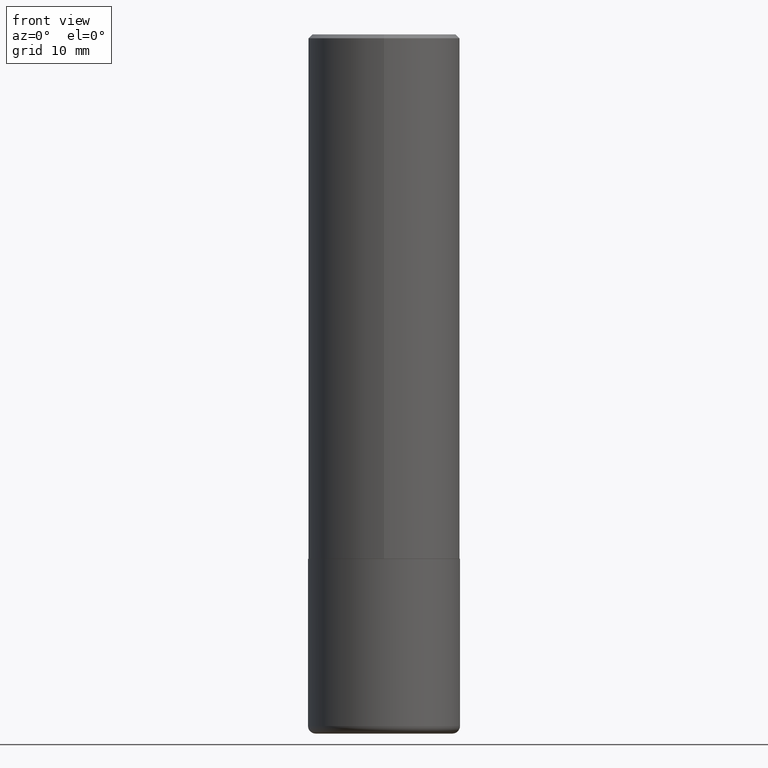
[diagram: clean part render]
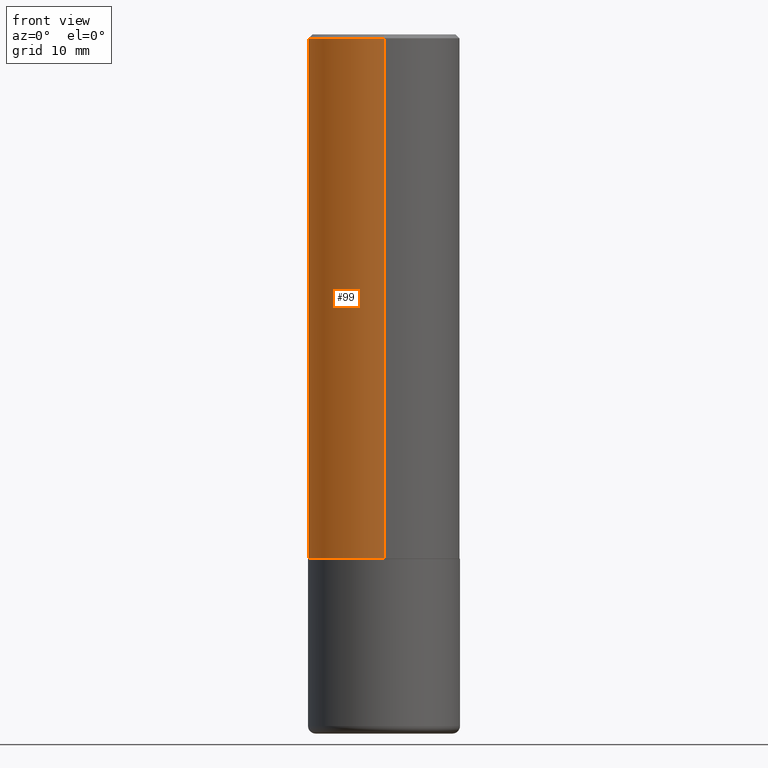
[diagram: same view with one face highlighted and labeled with its STEP entity id]
A machine part, front view. The second image highlights one B-rep face of the part: STEP entity #99.
In plain terms, the highlighted cylindrical surface (partial cylindrical patch) has radius 10 mm, axis along (-0, 0, 1).
Its self-contained STEP definition (entity closure, byte-faithful):
#7 = LINE ( 'NONE', #242, #141 ) ;
#21 = CIRCLE ( 'NONE', #382, 0.3937000000000003830 ) ;
#22 = DIRECTION ( 'NONE',  ( -2.445886766605957047E-29, 3.490882795731700761E-15, 1.000000000000000000 ) ) ;
#25 = CARTESIAN_POINT ( 'NONE',  ( 2.749192406205083217E-15, 0.3936999999999999389, -0.02000000000000146105 ) ) ;
#31 = VECTOR ( 'NONE', #59, 39.37007874015748143 ) ;
#39 = DIRECTION ( 'NONE',  ( -2.445886766605957047E-29, 3.490882795731700761E-15, 1.000000000000000000 ) ) ;
#55 = CYLINDRICAL_SURFACE ( 'NONE', #350, 0.3937000000000002164 ) ;
#57 = DIRECTION ( 'NONE',  ( -6.982962677686265922E-15, -1.000000000000000000, 3.490882795731701156E-15 ) ) ;
#59 = DIRECTION ( 'NONE',  ( -2.445886766605957047E-29, 3.490882795731700761E-15, 1.000000000000000000 ) ) ;
#99 = ADVANCED_FACE ( 'NONE', ( #205 ), #55, .T. ) ;
#100 = DIRECTION ( 'NONE',  ( -6.982962677686265133E-15, -1.000000000000000000, 4.163344669033670901E-15 ) ) ;
#101 = VERTEX_POINT ( 'NONE', #209 ) ;
#107 = ORIENTED_EDGE ( 'NONE', *, *, #179, .T. ) ;
#109 = CIRCLE ( 'NONE', #113, 0.3937000000000000499 ) ;
#113 = AXIS2_PLACEMENT_3D ( 'NONE', #193, #39, #286 ) ;
#140 = CARTESIAN_POINT ( 'NONE',  ( 2.797406750687549496E-15, 0.3936999999999908906, -2.715500000000001801 ) ) ;
#141 = VECTOR ( 'NONE', #22, 39.37007874015748143 ) ;
#155 = CARTESIAN_POINT ( 'NONE',  ( -2.749192406205018924E-15, -0.3937000000000098754, -2.715499999999998249 ) ) ;
#163 = ORIENTED_EDGE ( 'NONE', *, *, #311, .F. ) ;
#179 = EDGE_CURVE ( 'NONE', #317, #101, #214, .T. ) ;
#193 = CARTESIAN_POINT ( 'NONE',  ( 4.891773533211934694E-31, -6.981765591463430858E-17, -0.02000000000000008715 ) ) ;
#205 = FACE_OUTER_BOUND ( 'NONE', #225, .T. ) ;
#209 = CARTESIAN_POINT ( 'NONE',  ( -2.700978061722651252E-15, -0.3937000000000001054, -0.01999999999999870978 ) ) ;
#214 = LINE ( 'NONE', #344, #31 ) ;
#223 = ORIENTED_EDGE ( 'NONE', *, *, #384, .F. ) ;
#225 = EDGE_LOOP ( 'NONE', ( #223, #396, #107, #163 ) ) ;
#242 = CARTESIAN_POINT ( 'NONE',  ( 2.797406750687515575E-15, 0.3937000000000002164, -1.374360556679571455E-15 ) ) ;
#256 = DIRECTION ( 'NONE',  ( -2.445886766605957047E-29, 3.490882795731700761E-15, 1.000000000000000000 ) ) ;
#286 = DIRECTION ( 'NONE',  ( -6.982962677686265133E-15, -1.000000000000000000, 3.491137977679279424E-15 ) ) ;
#306 = EDGE_CURVE ( 'NONE', #397, #317, #21, .T. ) ;
#311 = EDGE_CURVE ( 'NONE', #395, #101, #109, .T. ) ;
#317 = VERTEX_POINT ( 'NONE', #155 ) ;
#344 = CARTESIAN_POINT ( 'NONE',  ( -2.749192406205084400E-15, -0.3937000000000002164, 1.374360556679571455E-15 ) ) ;
#350 = AXIS2_PLACEMENT_3D ( 'NONE', #391, #372, #57 ) ;
#355 = CARTESIAN_POINT ( 'NONE',  ( 6.641805514718476328E-29, -9.479492231809431685E-15, -2.715500000000000025 ) ) ;
#372 = DIRECTION ( 'NONE',  ( -2.445886766605957047E-29, 3.490882795731700761E-15, 1.000000000000000000 ) ) ;
#382 = AXIS2_PLACEMENT_3D ( 'NONE', #355, #256, #100 ) ;
#384 = EDGE_CURVE ( 'NONE', #397, #395, #7, .T. ) ;
#391 = CARTESIAN_POINT ( 'NONE',  ( 0.000000000000000000, 0.000000000000000000, 0.000000000000000000 ) ) ;
#395 = VERTEX_POINT ( 'NONE', #25 ) ;
#396 = ORIENTED_EDGE ( 'NONE', *, *, #306, .T. ) ;
#397 = VERTEX_POINT ( 'NONE', #140 ) ;